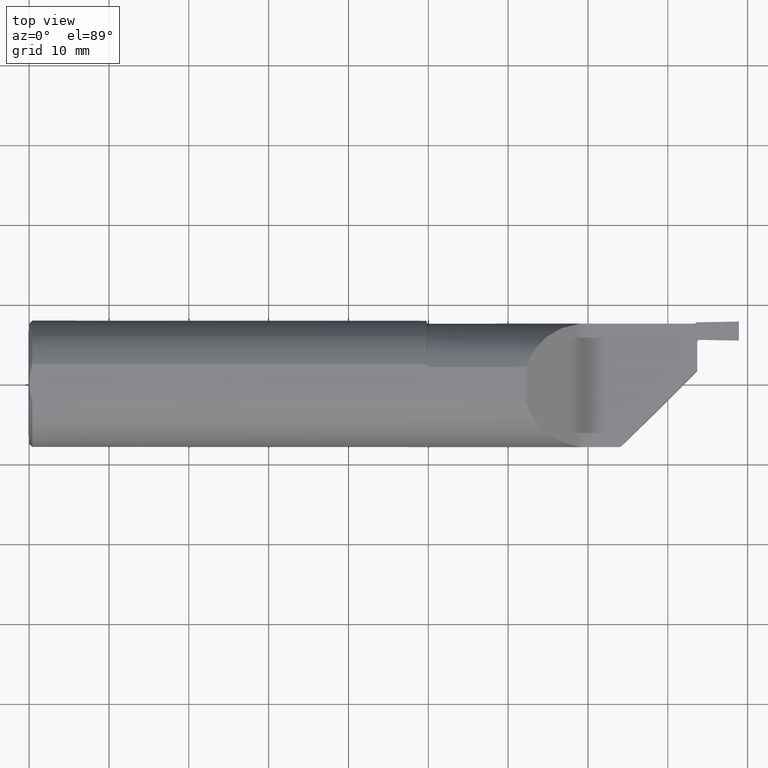
[diagram: clean part render]
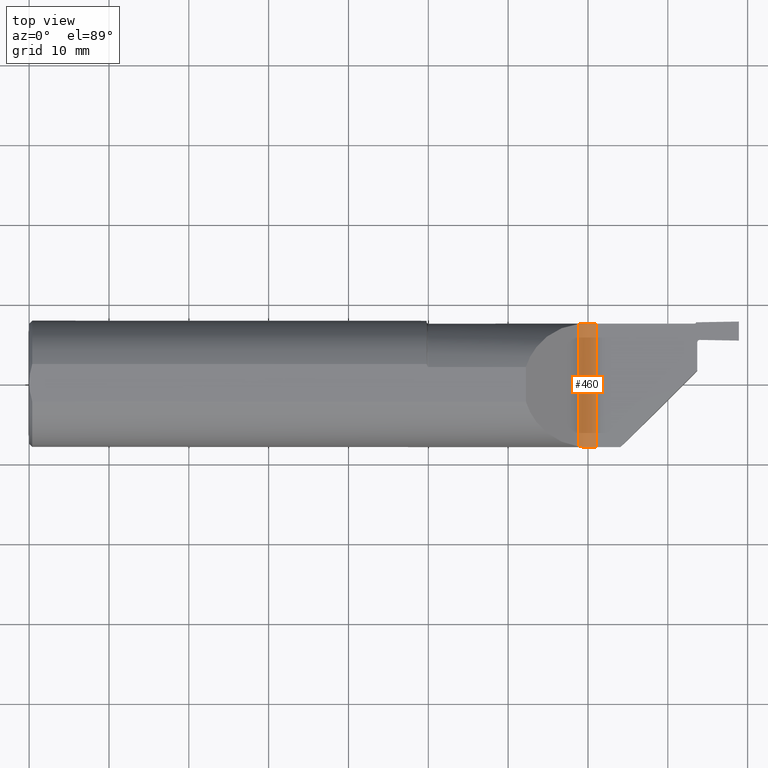
[diagram: same view with one face highlighted and labeled with its STEP entity id]
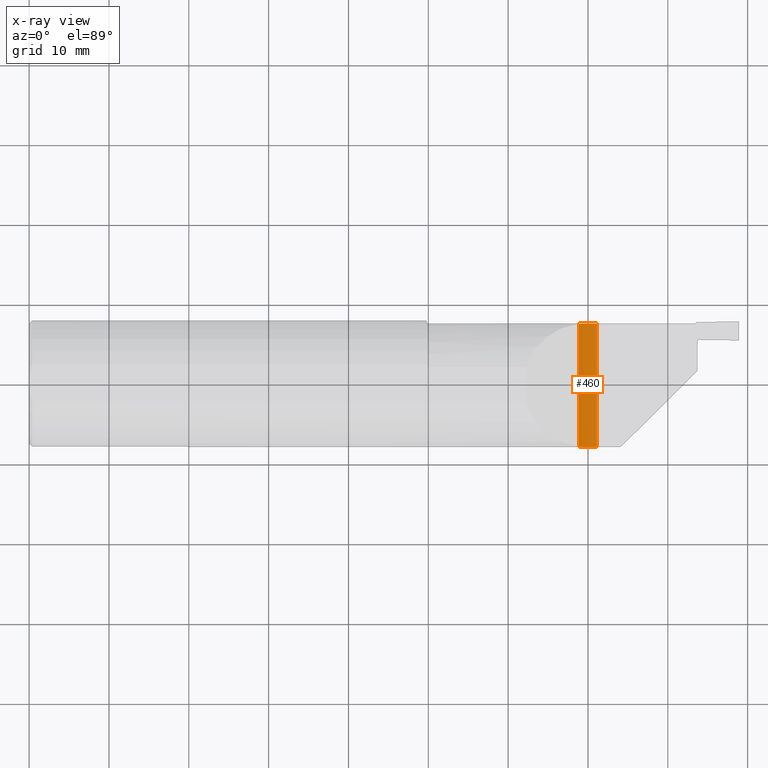
[diagram: x-ray of the same camera — body ghosted, the highlighted face saturated]
A machine part, top view. The second image highlights one B-rep face of the part: STEP entity #460.
The next image is the same camera in x-ray: the body ghosted, the highlighted face saturated — about 0% of this face is hidden behind the body in this view.
In plain terms, the highlighted cylindrical surface (edge-blend (fillet) strip) has radius 3.175 mm, axis along (0, -1, 0).
Its self-contained STEP definition (entity closure, byte-faithful):
#11 = CARTESIAN_POINT ( 'NONE',  ( 2.723503842258455432, 0.2963290950768751042, 0.02563397962624387738 ) ) ;
#23 = VERTEX_POINT ( 'NONE', #243 ) ;
#33 = CARTESIAN_POINT ( 'NONE',  ( 2.799776695296631868, 0.2973492383597807764, -1.707404996040164512E-17 ) ) ;
#38 = VECTOR ( 'NONE', #192, 39.37007874015748143 ) ;
#44 = CYLINDRICAL_SURFACE ( 'NONE', #511, 0.1250000000000000000 ) ;
#87 = CARTESIAN_POINT ( 'NONE',  ( 2.791523900243894740, 0.2973492383597807209, -2.254308158834279832E-17 ) ) ;
#93 = CARTESIAN_POINT ( 'NONE',  ( 2.783262096974776334, 0.2973522559233172102, 0.0008266951744985345579 ) ) ;
#113 = FACE_OUTER_BOUND ( 'NONE', #688, .T. ) ;
#127 = ORIENTED_EDGE ( 'NONE', *, *, #617, .F. ) ;
#150 = EDGE_CURVE ( 'NONE', #624, #799, #821, .T. ) ;
#166 = CARTESIAN_POINT ( 'NONE',  ( 2.767437696019467985, -0.3123286490856566622, 0.003981597903693289385 ) ) ;
#175 = B_SPLINE_CURVE_WITH_KNOTS ( 'NONE', 3,
 ( #242, #376, #246, #166, #864, #872, #668, #719, #373, #867 ),
 .UNSPECIFIED., .F., .F.,
 ( 4, 2, 2, 2, 4 ),
 ( 0.000000000000000000, 0.0006200545602135924036, 0.001240109120427184807, 0.001860163680640777211, 0.002480218240854369614 ),
 .UNSPECIFIED. ) ;
#192 = DIRECTION ( 'NONE',  ( 0.000000000000000000, -1.000000000000000000, 0.000000000000000000 ) ) ;
#242 = CARTESIAN_POINT ( 'NONE',  ( 2.799776695296631868, -0.3123499999999999610, 0.000000000000000000 ) ) ;
#243 = CARTESIAN_POINT ( 'NONE',  ( 2.799776695296631868, 0.2973492383597807764, -1.707404996040164512E-17 ) ) ;
#246 = CARTESIAN_POINT ( 'NONE',  ( 2.783406291026808255, -0.3123529779476911239, 0.0008095237780517812410 ) ) ;
#248 = CARTESIAN_POINT ( 'NONE',  ( 2.711388347648312713, 0.2951971671624064042, 0.03661165235168226811 ) ) ;
#260 = LINE ( 'NONE', #876, #38 ) ;
#320 = DIRECTION ( 'NONE',  ( 0.000000000000000000, -1.000000000000000000, 0.000000000000000000 ) ) ;
#338 = CARTESIAN_POINT ( 'NONE',  ( 2.711388347648313157, 0.4123500000000000498, 0.03661165235168205301 ) ) ;
#373 = CARTESIAN_POINT ( 'NONE',  ( 2.717205864027919304, -0.3108835129758812377, 0.03079413597207513245 ) ) ;
#374 = ORIENTED_EDGE ( 'NONE', *, *, #769, .F. ) ;
#376 = CARTESIAN_POINT ( 'NONE',  ( 2.791522665335699482, -0.3123499999999999055, 1.500648922300925238E-19 ) ) ;
#379 = B_SPLINE_CURVE_WITH_KNOTS ( 'NONE', 3,
 ( #489, #632, #11, #718, #659, #730, #667, #93, #87, #33 ),
 .UNSPECIFIED., .F., .F.,
 ( 4, 2, 2, 2, 4 ),
 ( 0.000000000000000000, 0.0006199328346996068641, 0.001239865669399213728, 0.001859798504098820592, 0.002479731338798427456 ),
 .UNSPECIFIED. ) ;
#457 = EDGE_CURVE ( 'NONE', #650, #624, #175, .T. ) ;
#460 = ADVANCED_FACE ( 'NONE', ( #113 ), #44, .F. ) ;
#482 = VECTOR ( 'NONE', #604, 39.37007874015748143 ) ;
#489 = CARTESIAN_POINT ( 'NONE',  ( 2.711388347648312713, 0.2951971671624064042, 0.03661165235168226811 ) ) ;
#490 = ORIENTED_EDGE ( 'NONE', *, *, #457, .F. ) ;
#508 = ORIENTED_EDGE ( 'NONE', *, *, #150, .F. ) ;
#511 = AXIS2_PLACEMENT_3D ( 'NONE', #653, #320, #524 ) ;
#524 = DIRECTION ( 'NONE',  ( 0.000000000000000000, 0.000000000000000000, -1.000000000000000000 ) ) ;
#604 = DIRECTION ( 'NONE',  ( -0.000000000000000000, 1.000000000000000000, -0.000000000000000000 ) ) ;
#617 = EDGE_CURVE ( 'NONE', #23, #650, #260, .T. ) ;
#624 = VERTEX_POINT ( 'NONE', #816 ) ;
#632 = CARTESIAN_POINT ( 'NONE',  ( 2.717205560604044390, 0.2958834220351636568, 0.03079443939595079630 ) ) ;
#650 = VERTEX_POINT ( 'NONE', #899 ) ;
#653 = CARTESIAN_POINT ( 'NONE',  ( 2.799776695296631868, -0.4123500000000000498, 0.1249999999999999861 ) ) ;
#659 = CARTESIAN_POINT ( 'NONE',  ( 2.744331949518403757, 0.2971080177065931194, 0.01267066154421023563 ) ) ;
#667 = CARTESIAN_POINT ( 'NONE',  ( 2.767240569818964158, 0.2973273312837141913, 0.004032474903713762111 ) ) ;
#668 = CARTESIAN_POINT ( 'NONE',  ( 2.737198267252211270, -0.3119476854304215618, 0.01648500144479711146 ) ) ;
#688 = EDGE_LOOP ( 'NONE', ( #374, #508, #490, #127 ) ) ;
#718 = CARTESIAN_POINT ( 'NONE',  ( 2.737023584286429223, 0.2969416066437379764, 0.01658781814739456600 ) ) ;
#719 = CARTESIAN_POINT ( 'NONE',  ( 2.723623800555937446, -0.3113371557985921134, 0.02553995178686549114 ) ) ;
#730 = CARTESIAN_POINT ( 'NONE',  ( 2.759453897954011747, 0.2972994535838715535, 0.006399527291019162234 ) ) ;
#769 = EDGE_CURVE ( 'NONE', #799, #23, #379, .T. ) ;
#799 = VERTEX_POINT ( 'NONE', #248 ) ;
#816 = CARTESIAN_POINT ( 'NONE',  ( 2.711388347648313157, -0.3101968881405479106, 0.03661165235168182402 ) ) ;
#821 = LINE ( 'NONE', #338, #482 ) ;
#864 = CARTESIAN_POINT ( 'NONE',  ( 2.759502396207997421, -0.3123005131455937611, 0.006382863975782117338 ) ) ;
#867 = CARTESIAN_POINT ( 'NONE',  ( 2.711388347648313157, -0.3101968881405479106, 0.03661165235168182402 ) ) ;
#872 = CARTESIAN_POINT ( 'NONE',  ( 2.744373049089623429, -0.3121094746894236827, 0.01265018863995691530 ) ) ;
#876 = CARTESIAN_POINT ( 'NONE',  ( 2.799776695296631868, -0.4123500000000000498, 0.000000000000000000 ) ) ;
#899 = CARTESIAN_POINT ( 'NONE',  ( 2.799776695296631868, -0.3123499999999999610, 0.000000000000000000 ) ) ;